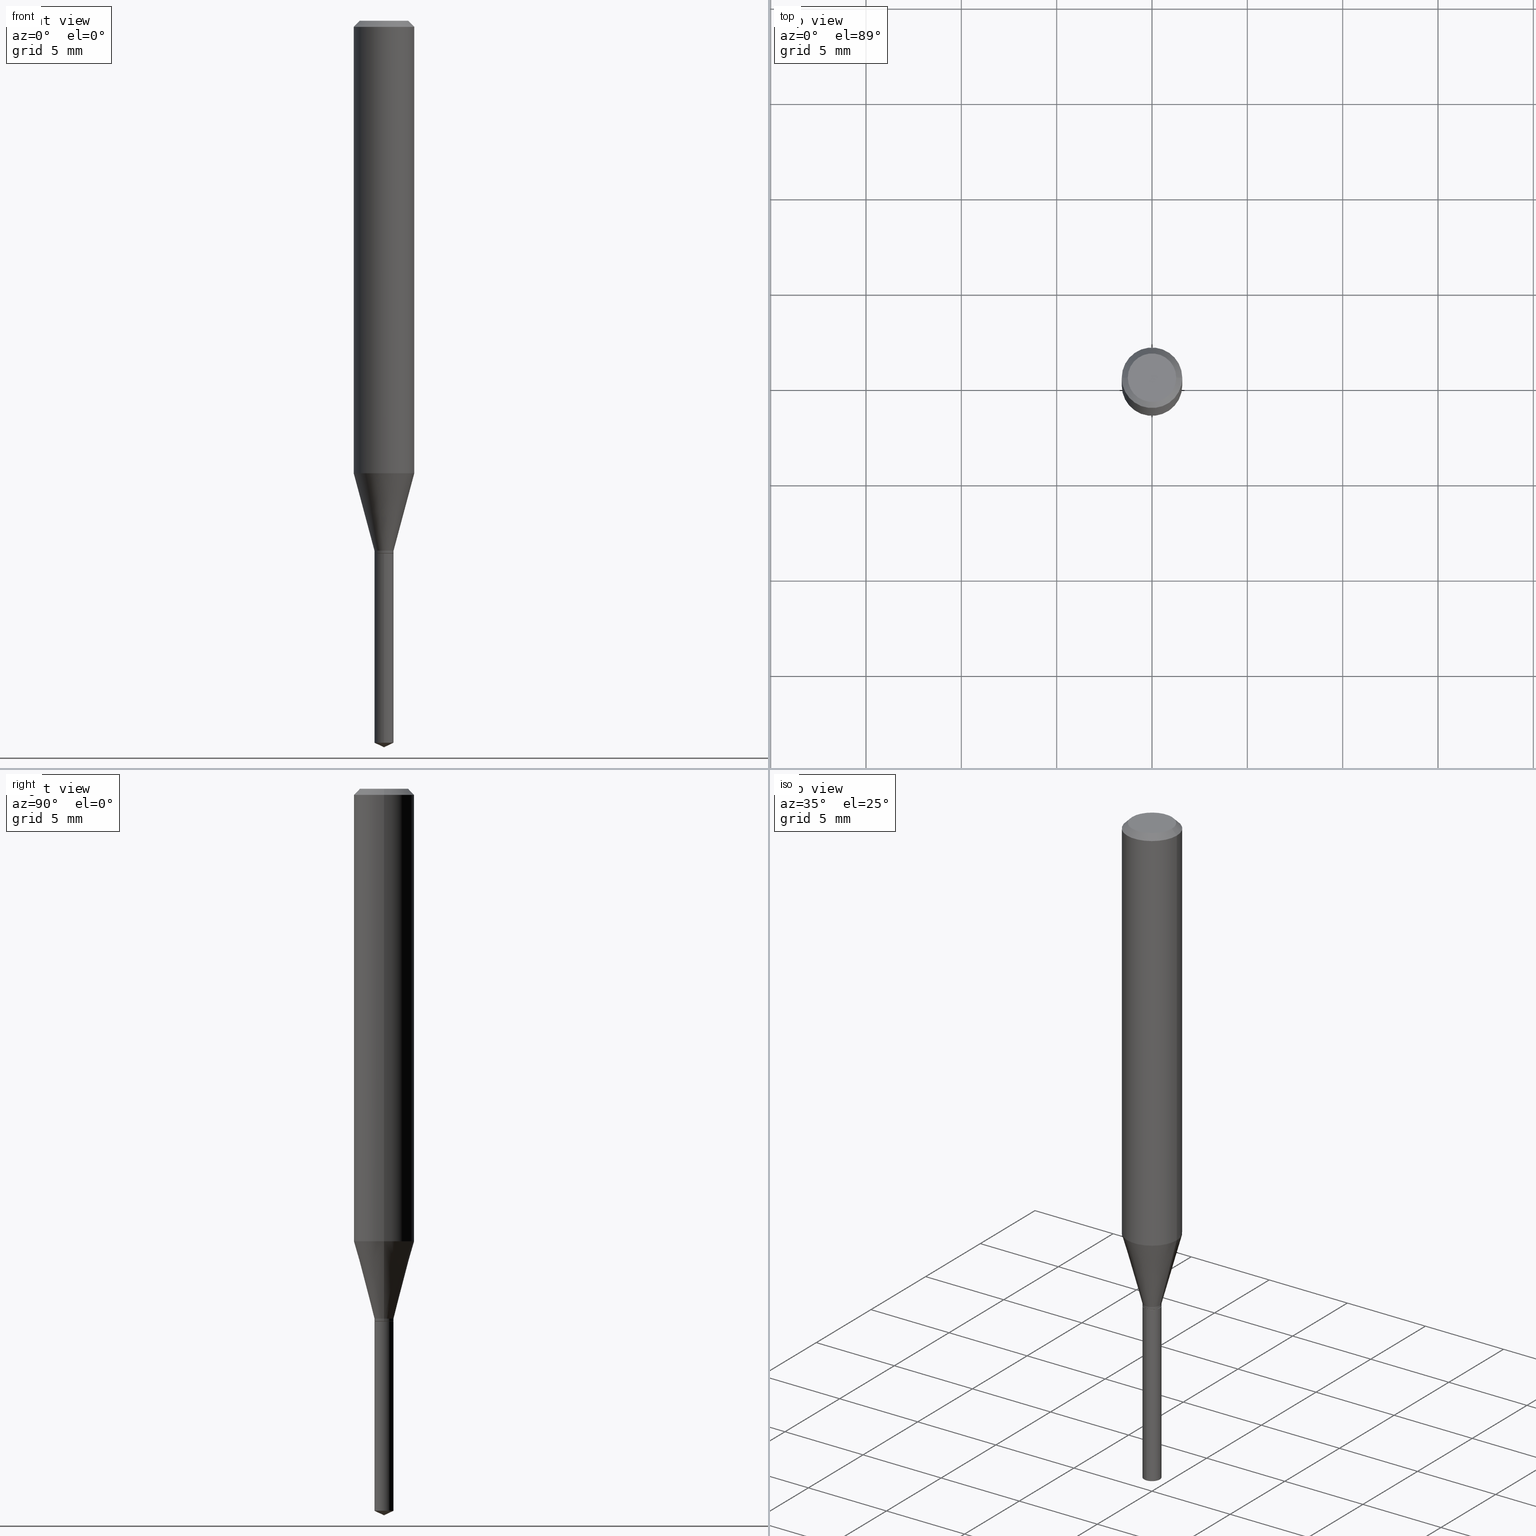
[diagram: canonical four-view strip — front | top / right | iso, engineering-drawing reading convention]
A machine part, canonical four-view strip (front | top / right | iso — engineering-drawing reading convention). The complete STEP part file that produces these views, byte-faithful:
ISO-10303-21;
HEADER;
FILE_DESCRIPTION (( 'STEP AP203' ),
    '1' );
FILE_NAME ('07319.STEP',
    '2024-04-23T20:25:37',
    ( '' ),
    ( '' ),
    'SwSTEP 2.0',
    'SolidWorks 2023',
    '' );
FILE_SCHEMA (( 'CONFIG_CONTROL_DESIGN' ));
ENDSEC;

DATA;
#1 = DIRECTION ( 'NONE',  ( 1.000000000000000000, -6.982962677686265922E-15, 4.876176775795935232E-29 ) ) ;
#2 = CIRCLE ( 'NONE', #381, 0.01969999999999999876 ) ;
#3 = AXIS2_PLACEMENT_3D ( 'NONE', #334, #342, #488 ) ;
#4 = EDGE_CURVE ( 'NONE', #133, #46, #37, .T. ) ;
#5 = CARTESIAN_POINT ( 'NONE',  ( 2.690015686803650369E-29, -3.840629472727460101E-15, -1.100000000000000089 ) ) ;
#6 = CIRCLE ( 'NONE', #418, 0.01919999999999999832 ) ;
#7 = VECTOR ( 'NONE', #107, 39.37007874015748143 ) ;
#8 = CARTESIAN_POINT ( 'NONE',  ( 0.06250000000000011102, -3.698764390073353980E-15, -0.9343682254360521355 ) ) ;
#9 = CARTESIAN_POINT ( 'NONE',  ( 2.675587420847158338E-29, -3.820029732828286359E-15, -1.094100000000000295 ) ) ;
#10 = FACE_OUTER_BOUND ( 'NONE', #239, .T. ) ;
#11 = APPROVAL ( #185, 'UNSPECIFIED' ) ;
#12 = ORIENTED_EDGE ( 'NONE', *, *, #383, .F. ) ;
#13 = COORDINATED_UNIVERSAL_TIME_OFFSET ( 5, 0, .BEHIND. ) ;
#14 = CARTESIAN_POINT ( 'NONE',  ( 0.01919999999999999832, -3.974702356139037098E-15, -1.100000000000000089 ) ) ;
#15 = CLOSED_SHELL ( 'NONE', ( #309, #18, #365, #379, #451, #295, #262, #138, #160, #489, #461, #323 ) ) ;
#16 = VERTEX_POINT ( 'NONE', #32 ) ;
#17 = AXIS2_PLACEMENT_3D ( 'NONE', #441, #94, #242 ) ;
#18 = ADVANCED_FACE ( 'NONE', ( #108 ), #195, .T. ) ;
#19 = APPROVAL_DATE_TIME ( #464, #146 ) ;
#20 = DIRECTION ( 'NONE',  ( -6.982962677686265133E-15, -1.000000000000000000, 6.933624349401683764E-15 ) ) ;
#21 = ORIENTED_EDGE ( 'NONE', *, *, #120, .T. ) ;
#22 = CARTESIAN_POINT ( 'NONE',  ( 3.668252923656895710E-29, -5.237152723863177100E-15, -1.500000000000000222 ) ) ;
#23 = APPLICATION_CONTEXT ( 'configuration controlled 3d designs of mechanical parts and assemblies' ) ;
#24 = VERTEX_POINT ( 'NONE', #67 ) ;
#25 = ORIENTED_EDGE ( 'NONE', *, *, #59, .T. ) ;
#26 = ORIENTED_EDGE ( 'NONE', *, *, #35, .F. ) ;
#27 = MECHANICAL_CONTEXT ( 'NONE', #23, 'mechanical' ) ;
#28 = EDGE_LOOP ( 'NONE', ( #100, #329, #480, #272 ) ) ;
#29 = EDGE_CURVE ( 'NONE', #192, #433, #180, .T. ) ;
#30 = APPLICATION_PROTOCOL_DEFINITION ( 'international standard', 'config_control_design', 1994, #68 ) ;
#31 =( CONVERSION_BASED_UNIT ( 'INCH', #103 ) LENGTH_UNIT ( ) NAMED_UNIT ( #129 ) );
#32 = CARTESIAN_POINT ( 'NONE',  ( -0.01919999999999999832, -3.701556040287409701E-15, -1.100000000000000089 ) ) ;
#33 = DATE_TIME_ROLE ( 'classification_date' ) ;
#34 = AXIS2_PLACEMENT_3D ( 'NONE', #416, #450, #1 ) ;
#35 = EDGE_CURVE ( 'NONE', #439, #46, #250, .T. ) ;
#36 = SHAPE_DEFINITION_REPRESENTATION ( #466, #483 ) ;
#37 = LINE ( 'NONE', #297, #469 ) ;
#38 = DIRECTION ( 'NONE',  ( -1.000000000000000000, 6.982962677686266711E-15, 0.000000000000000000 ) ) ;
#39 = ADVANCED_FACE ( 'NONE', ( #246 ), #385, .T. ) ;
#40 = PERSON_AND_ORGANIZATION ( #434, #316 ) ;
#41 = DIRECTION ( 'NONE',  ( 6.439704144417028775E-15, 0.9063077870366519351, 0.4226182617406950559 ) ) ;
#42 = CIRCLE ( 'NONE', #427, 0.06250000000000011102 ) ;
#43 = DIRECTION ( 'NONE',  ( 1.000000000000000000, -6.982962677686265922E-15, 4.875957971899673662E-29 ) ) ;
#44 = AXIS2_PLACEMENT_3D ( 'NONE', #378, #462, #71 ) ;
#45 = CARTESIAN_POINT ( 'NONE',  ( 1.399769189447762373E-16, 0.01969999999999615461, -1.100000000000000089 ) ) ;
#46 = VERTEX_POINT ( 'NONE', #102 ) ;
#47 = DIRECTION ( 'NONE',  ( 1.000000000000000000, -6.982962677686265922E-15, 0.000000000000000000 ) ) ;
#48 = ORIENTED_EDGE ( 'NONE', *, *, #339, .T. ) ;
#49 = CARTESIAN_POINT ( 'NONE',  ( 3.056836007731440539E-31, -4.364351673553960451E-17, -0.01250000000000008049 ) ) ;
#50 = VECTOR ( 'NONE', #172, 39.37007874015748143 ) ;
#51 = ORIENTED_EDGE ( 'NONE', *, *, #109, .T. ) ;
#52 = CC_DESIGN_SECURITY_CLASSIFICATION ( #233, ( #438 ) ) ;
#53 = EDGE_CURVE ( 'NONE', #122, #86, #399, .T. ) ;
#54 = ORIENTED_EDGE ( 'NONE', *, *, #390, .T. ) ;
#55 = DIRECTION ( 'NONE',  ( 1.000000000000000000, -6.982962677686278543E-15, 0.000000000000000000 ) ) ;
#56 = ORIENTED_EDGE ( 'NONE', *, *, #339, .F. ) ;
#57 = ORIENTED_EDGE ( 'NONE', *, *, #127, .T. ) ;
#58 = VERTEX_POINT ( 'NONE', #219 ) ;
#59 = EDGE_CURVE ( 'NONE', #86, #122, #2, .T. ) ;
#60 = ORIENTED_EDGE ( 'NONE', *, *, #217, .T. ) ;
#61 = CIRCLE ( 'NONE', #215, 0.01969999999999999876 ) ;
#62 = UNCERTAINTY_MEASURE_WITH_UNIT (LENGTH_MEASURE( 1.000000000000000082E-05 ), #31, 'distance_accuracy_value', 'NONE');
#63 = DIRECTION ( 'NONE',  ( -2.445399690415121530E-29, 3.491580316559632610E-15, 1.000000000000000000 ) ) ;
#64 = PERSON_AND_ORGANIZATION_ROLE ( 'design_owner' ) ;
#65 = COORDINATED_UNIVERSAL_TIME_OFFSET ( 5, 0, .BEHIND. ) ;
#66 = CC_DESIGN_PERSON_AND_ORGANIZATION_ASSIGNMENT ( #40, #425, ( #231 ) ) ;
#67 = CARTESIAN_POINT ( 'NONE',  ( 0.01969999999999999876, -3.976448096808457812E-15, -1.099499999999999922 ) ) ;
#68 = APPLICATION_CONTEXT ( 'configuration controlled 3d designs of mechanical parts and assemblies' ) ;
#69 = CALENDAR_DATE ( 2024, 23, 4 ) ;
#70 = AXIS2_PLACEMENT_3D ( 'NONE', #465, #426, #83 ) ;
#71 = DIRECTION ( 'NONE',  ( 1.000000000000000000, -6.982962677686266711E-15, 0.000000000000000000 ) ) ;
#72 = CIRCLE ( 'NONE', #3, 0.01969999999999999876 ) ;
#73 = DATE_AND_TIME ( #69, #78 ) ;
#74 = DIRECTION ( 'NONE',  ( -2.445468806185136597E-29, 3.491481338843145583E-15, 1.000000000000000000 ) ) ;
#75 = CARTESIAN_POINT ( 'NONE',  ( 3.645711483492757860E-29, -5.205187031730015573E-15, -1.490813739134346783 ) ) ;
#76 = EDGE_CURVE ( 'NONE', #16, #204, #6, .T. ) ;
#77 = CIRCLE ( 'NONE', #81, 0.04999999999999999584 ) ;
#78 = LOCAL_TIME ( 16, 25, 37.00000000000000000, #406 ) ;
#79 = LINE ( 'NONE', #408, #162 ) ;
#80 = CARTESIAN_POINT ( 'NONE',  ( 3.893286209682126177E-47, -5.558580879666067980E-33, -1.592040838891559689E-18 ) ) ;
#81 = AXIS2_PLACEMENT_3D ( 'NONE', #80, #220, #43 ) ;
#82 = CALENDAR_DATE ( 2024, 23, 4 ) ;
#83 = DIRECTION ( 'NONE',  ( 1.000000000000000000, -6.982962677686278543E-15, 0.000000000000000000 ) ) ;
#84 = APPROVAL ( #104, 'UNSPECIFIED' ) ;
#85 = LOCAL_TIME ( 16, 25, 37.00000000000000000, #13 ) ;
#86 = VERTEX_POINT ( 'NONE', #144 ) ;
#87 = ORIENTED_EDGE ( 'NONE', *, *, #252, .F. ) ;
#88 = EDGE_CURVE ( 'NONE', #282, #122, #178, .T. ) ;
#89 = ORIENTED_EDGE ( 'NONE', *, *, #396, .T. ) ;
#90 = FACE_OUTER_BOUND ( 'NONE', #128, .T. ) ;
#91 = EDGE_LOOP ( 'NONE', ( #478, #241, #130, #317 ) ) ;
#92 = ORIENTED_EDGE ( 'NONE', *, *, #152, .F. ) ;
#93 = FACE_OUTER_BOUND ( 'NONE', #331, .T. ) ;
#94 = DIRECTION ( 'NONE',  ( 2.438088387897960049E-29, -3.491481338843145188E-15, -1.000000000000000000 ) ) ;
#95 = CARTESIAN_POINT ( 'NONE',  ( -0.01969999999999999876, 1.399769189447397278E-16, -9.690302127802162501E-31 ) ) ;
#96 = CC_DESIGN_DATE_AND_TIME_ASSIGNMENT ( #352, #312, ( #231 ) ) ;
#97 = DIRECTION ( 'NONE',  ( 0.7071067811865453523, -7.319954787623248157E-15, -0.7071067811865496822 ) ) ;
#98 = AXIS2_PLACEMENT_3D ( 'NONE', #351, #435, #226 ) ;
#99 = AXIS2_PLACEMENT_3D ( 'NONE', #293, #253, #249 ) ;
#100 = ORIENTED_EDGE ( 'NONE', *, *, #217, .F. ) ;
#101 = LINE ( 'NONE', #404, #306 ) ;
#102 = CARTESIAN_POINT ( 'NONE',  ( 0.06250000000000000000, -4.800786840909312308E-16, -0.01250000000000008049 ) ) ;
#103 = LENGTH_MEASURE_WITH_UNIT ( LENGTH_MEASURE( 0.02539999999999999897 ), #444 );
#104 = APPROVAL_STATUS ( 'not_yet_approved' ) ;
#105 = DIRECTION ( 'NONE',  ( -6.982962677686265133E-15, -1.000000000000000000, 6.933624349401683764E-15 ) ) ;
#106 = DIRECTION ( 'NONE',  ( 1.000000000000000000, -6.982962677686278543E-15, 0.000000000000000000 ) ) ;
#107 = DIRECTION ( 'NONE',  ( -2.445399690415121810E-29, 3.491580316559632610E-15, 1.000000000000000000 ) ) ;
#108 = FACE_OUTER_BOUND ( 'NONE', #474, .T. ) ;
#109 = EDGE_CURVE ( 'NONE', #16, #333, #79, .T. ) ;
#110 = DIRECTION ( 'NONE',  ( 0.7071067811865218156, -2.468850131081987665E-15, 0.7071067811865732189 ) ) ;
#111 = DIRECTION ( 'NONE',  ( -2.445468806185136597E-29, 3.491481338843145583E-15, 1.000000000000000000 ) ) ;
#112 = DIRECTION ( 'NONE',  ( -6.328713451373374112E-15, -0.9063077870366490485, 0.4226182617407013287 ) ) ;
#113 = FACE_OUTER_BOUND ( 'NONE', #199, .T. ) ;
#114 = FACE_OUTER_BOUND ( 'NONE', #91, .T. ) ;
#115 = CC_DESIGN_PERSON_AND_ORGANIZATION_ASSIGNMENT ( #455, #449, ( #438 ) ) ;
#116 = LINE ( 'NONE', #190, #358 ) ;
#117 = DESIGN_CONTEXT ( 'detailed design', #68, 'design' ) ;
#118 = LOCAL_TIME ( 16, 25, 37.00000000000000000, #65 ) ;
#119 = EDGE_LOOP ( 'NONE', ( #21, #51, #440, #430 ) ) ;
#120 = EDGE_CURVE ( 'NONE', #204, #16, #153, .T. ) ;
#121 = EDGE_LOOP ( 'NONE', ( #216, #184, #320, #166 ) ) ;
#122 = VERTEX_POINT ( 'NONE', #275 ) ;
#123 = CARTESIAN_POINT ( 'NONE',  ( 0.000000000000000000, 0.000000000000000000, 0.000000000000000000 ) ) ;
#124 = ORIENTED_EDGE ( 'NONE', *, *, #4, .F. ) ;
#125 = AXIS2_PLACEMENT_3D ( 'NONE', #345, #382, #410 ) ;
#126 = LOCAL_TIME ( 16, 25, 37.00000000000000000, #189 ) ;
#127 = EDGE_CURVE ( 'NONE', #58, #234, #221, .T. ) ;
#128 = EDGE_LOOP ( 'NONE', ( #26, #87, #354, #164 ) ) ;
#129 = DIMENSIONAL_EXPONENTS ( 1.000000000000000000, 0.000000000000000000, 0.000000000000000000, 0.000000000000000000, 0.000000000000000000, 0.000000000000000000, 0.000000000000000000 ) ;
#130 = ORIENTED_EDGE ( 'NONE', *, *, #437, .T. ) ;
#131 = PERSON_AND_ORGANIZATION ( #434, #316 ) ;
#132 = PLANE ( 'NONE',  #17 ) ;
#133 = VERTEX_POINT ( 'NONE', #8 ) ;
#134 = MANIFOLD_SOLID_BREP ( 'Body-Move/Copy2[1]', #254 ) ;
#135 = DIRECTION ( 'NONE',  ( 1.000000000000000000, -6.982962677686265922E-15, 4.875957971899673662E-29 ) ) ;
#136 = CONICAL_SURFACE ( 'NONE', #70, 0.01969999999999999876, 0.2617993877991499629 ) ;
#137 = AXIS2_PLACEMENT_3D ( 'NONE', #288, #240, #403 ) ;
#138 = ADVANCED_FACE ( 'NONE', ( #273 ), #389, .T. ) ;
#139 = DIRECTION ( 'NONE',  ( 1.000000000000000000, -6.982962677686265922E-15, 0.000000000000000000 ) ) ;
#140 = EDGE_CURVE ( 'NONE', #46, #433, #486, .T. ) ;
#141 = AXIS2_PLACEMENT_3D ( 'NONE', #194, #314, #422 ) ;
#142 = CARTESIAN_POINT ( 'NONE',  ( 2.690015686803650369E-29, -3.840629472727460101E-15, -1.100000000000000089 ) ) ;
#143 = CARTESIAN_POINT ( 'NONE',  ( -0.06250000000000000000, 3.927916506198521080E-16, -0.01250000000000008049 ) ) ;
#144 = CARTESIAN_POINT ( 'NONE',  ( 1.399769189447761140E-16, 0.01969999999999479459, -1.490813739134346783 ) ) ;
#145 = CARTESIAN_POINT ( 'NONE',  ( 2.284968348794427209E-29, -3.262329222717961522E-15, -0.9343682254360521355 ) ) ;
#146 = APPROVAL ( #318, 'UNSPECIFIED' ) ;
#147 = CIRCLE ( 'NONE', #44, 0.06250000000000000000 ) ;
#148 = CONICAL_SURFACE ( 'NONE', #255, 0.01919999999999999832, 0.7853981633974119747 ) ;
#149 = CARTESIAN_POINT ( 'NONE',  ( -1.375643647503925164E-16, -0.01970000000000383944, -1.099999999999999867 ) ) ;
#150 = DIRECTION ( 'NONE',  ( -2.445468806185136597E-29, 3.491481338843145583E-15, 1.000000000000000000 ) ) ;
#151 = PLANE ( 'NONE',  #141 ) ;
#152 = EDGE_CURVE ( 'NONE', #234, #58, #338, .T. ) ;
#153 = CIRCLE ( 'NONE', #173, 0.01919999999999999832 ) ;
#154 = ORIENTED_EDGE ( 'NONE', *, *, #304, .T. ) ;
#155 = DIRECTION ( 'NONE',  ( -1.000000000000000000, 6.982962677686266711E-15, 0.000000000000000000 ) ) ;
#156 = APPROVAL_PERSON_ORGANIZATION ( #260, #84, #251 ) ;
#157 = ORIENTED_EDGE ( 'NONE', *, *, #224, .T. ) ;
#158 = CARTESIAN_POINT ( 'NONE',  ( 2.690015686803650369E-29, -3.840629472727460101E-15, -1.100000000000000089 ) ) ;
#159 = VERTEX_POINT ( 'NONE', #45 ) ;
#160 = ADVANCED_FACE ( 'NONE', ( #90 ), #181, .T. ) ;
#161 = DIRECTION ( 'NONE',  ( 0.000000000000000000, 0.000000000000000000, 1.000000000000000000 ) ) ;
#162 = VECTOR ( 'NONE', #473, 39.37007874015748143 ) ;
#163 = AXIS2_PLACEMENT_3D ( 'NONE', #170, #165, #208 ) ;
#164 = ORIENTED_EDGE ( 'NONE', *, *, #330, .T. ) ;
#165 = DIRECTION ( 'NONE',  ( -2.445468806185136597E-29, 3.491481338843145583E-15, 1.000000000000000000 ) ) ;
#166 = ORIENTED_EDGE ( 'NONE', *, *, #330, .F. ) ;
#167 = CARTESIAN_POINT ( 'NONE',  ( 0.01969999999999999876, -3.957594097578706363E-15, -1.094100000000000295 ) ) ;
#168 = DIRECTION ( 'NONE',  ( -6.982962677686266711E-15, -1.000000000000000000, 3.520397390770457025E-15 ) ) ;
#169 = COORDINATED_UNIVERSAL_TIME_OFFSET ( 5, 0, .BEHIND. ) ;
#170 = CARTESIAN_POINT ( 'NONE',  ( 0.000000000000000000, 0.000000000000000000, 0.000000000000000000 ) ) ;
#171 = ORIENTED_EDGE ( 'NONE', *, *, #383, .T. ) ;
#172 = DIRECTION ( 'NONE',  ( -0.7071067811865453523, 2.468850131082234184E-15, -0.7071067811865496822 ) ) ;
#173 = AXIS2_PLACEMENT_3D ( 'NONE', #158, #476, #384 ) ;
#174 = FACE_OUTER_BOUND ( 'NONE', #442, .T. ) ;
#175 = LINE ( 'NONE', #454, #7 ) ;
#176 = DIRECTION ( 'NONE',  ( -6.982962677686265133E-15, -1.000000000000000000, 6.933624349401683764E-15 ) ) ;
#177 = DIRECTION ( 'NONE',  ( 0.2588190451025212391, 1.565188264969622362E-15, 0.9659258262890679791 ) ) ;
#178 = LINE ( 'NONE', #459, #392 ) ;
#179 = CALENDAR_DATE ( 2024, 23, 4 ) ;
#180 = LINE ( 'NONE', #143, #50 ) ;
#181 = CONICAL_SURFACE ( 'NONE', #452, 0.06250000000000000000, 0.7853981633974452814 ) ;
#182 = VECTOR ( 'NONE', #244, 39.37007874015748143 ) ;
#183 = DIRECTION ( 'NONE',  ( 1.000000000000000000, -6.982962677686277755E-15, 0.000000000000000000 ) ) ;
#184 = ORIENTED_EDGE ( 'NONE', *, *, #285, .T. ) ;
#185 = APPROVAL_STATUS ( 'not_yet_approved' ) ;
#186 = CC_DESIGN_PERSON_AND_ORGANIZATION_ASSIGNMENT ( #413, #485, ( #438 ) ) ;
#187 = VECTOR ( 'NONE', #197, 39.37007874015748143 ) ;
#188 = CIRCLE ( 'NONE', #198, 0.04999999999999999584 ) ;
#189 = COORDINATED_UNIVERSAL_TIME_OFFSET ( 5, 0, .BEHIND. ) ;
#190 = CARTESIAN_POINT ( 'NONE',  ( -0.01969999999999999876, -3.680052813883547051E-15, -1.094100000000000295 ) ) ;
#191 = EDGE_CURVE ( 'NONE', #122, #230, #355, .T. ) ;
#192 = VERTEX_POINT ( 'NONE', #319 ) ;
#193 = DIRECTION ( 'NONE',  ( 1.000000000000000000, -6.982962677686266711E-15, 0.000000000000000000 ) ) ;
#194 = CARTESIAN_POINT ( 'NONE',  ( 2.690015686803650369E-29, -3.840629472727460101E-15, -1.100000000000000089 ) ) ;
#195 = CONICAL_SURFACE ( 'NONE', #327, 0.06250000000000000000, 0.7853981633974452814 ) ;
#196 = APPROVAL_ROLE ( '' ) ;
#197 = DIRECTION ( 'NONE',  ( -2.445399690415121810E-29, 3.491580316559632610E-15, 1.000000000000000000 ) ) ;
#198 = AXIS2_PLACEMENT_3D ( 'NONE', #259, #286, #135 ) ;
#199 = EDGE_LOOP ( 'NONE', ( #324, #157, #429, #92 ) ) ;
#200 = DIRECTION ( 'NONE',  ( -2.445468806185136597E-29, 3.491481338843145583E-15, 1.000000000000000000 ) ) ;
#201 = ORIENTED_EDGE ( 'NONE', *, *, #252, .T. ) ;
#202 = CARTESIAN_POINT ( 'NONE',  ( -1.375643647503925164E-16, -0.01970000000000383944, -1.099999999999999867 ) ) ;
#203 = ORIENTED_EDGE ( 'NONE', *, *, #269, .T. ) ;
#204 = VERTEX_POINT ( 'NONE', #14 ) ;
#205 = EDGE_LOOP ( 'NONE', ( #12, #25, #281, #366 ) ) ;
#206 = ADVANCED_FACE ( 'NONE', ( #394 ), #361, .T. ) ;
#207 = DATE_AND_TIME ( #179, #118 ) ;
#208 = DIRECTION ( 'NONE',  ( 1.000000000000000000, -6.982962677686265922E-15, 4.876176775795935232E-29 ) ) ;
#209 = AXIS2_PLACEMENT_3D ( 'NONE', #248, #228, #302 ) ;
#210 = PERSON_AND_ORGANIZATION ( #434, #316 ) ;
#211 = CARTESIAN_POINT ( 'NONE',  ( -0.01969999999999999876, -3.689479813498422381E-15, -1.099499999999999922 ) ) ;
#212 = SECURITY_CLASSIFICATION_LEVEL ( 'unclassified' ) ;
#213 = DIRECTION ( 'NONE',  ( 2.445468806185136597E-29, -3.491481338843145583E-15, -1.000000000000000000 ) ) ;
#214 = DIRECTION ( 'NONE',  ( -2.445399690415121530E-29, 3.491580316559632610E-15, 1.000000000000000000 ) ) ;
#215 = AXIS2_PLACEMENT_3D ( 'NONE', #279, #150, #55 ) ;
#216 = ORIENTED_EDGE ( 'NONE', *, *, #243, .F. ) ;
#217 = EDGE_CURVE ( 'NONE', #234, #277, #116, .T. ) ;
#218 = CALENDAR_DATE ( 2024, 23, 4 ) ;
#219 = CARTESIAN_POINT ( 'NONE',  ( 0.01969999999999999876, -3.957594097578706363E-15, -1.094100000000000295 ) ) ;
#220 = DIRECTION ( 'NONE',  ( -2.445468806185136597E-29, 3.491481338843145583E-15, 1.000000000000000000 ) ) ;
#221 = CIRCLE ( 'NONE', #98, 0.01969999999999999876 ) ;
#222 =( GEOMETRIC_REPRESENTATION_CONTEXT ( 3 ) GLOBAL_UNCERTAINTY_ASSIGNED_CONTEXT ( ( #62 ) ) GLOBAL_UNIT_ASSIGNED_CONTEXT ( ( #31, #247, #405 ) ) REPRESENTATION_CONTEXT ( 'NONE', 'WORKASPACE' ) );
#223 = DIRECTION ( 'NONE',  ( 2.445468806185136597E-29, -3.491481338843145583E-15, -1.000000000000000000 ) ) ;
#224 = EDGE_CURVE ( 'NONE', #333, #24, #61, .T. ) ;
#225 = ORIENTED_EDGE ( 'NONE', *, *, #88, .T. ) ;
#226 = DIRECTION ( 'NONE',  ( 1.000000000000000000, -6.982962677686278543E-15, 0.000000000000000000 ) ) ;
#227 = EDGE_LOOP ( 'NONE', ( #472, #225, #276 ) ) ;
#228 = DIRECTION ( 'NONE',  ( -2.445399690415121530E-29, 3.491580316559632610E-15, 1.000000000000000000 ) ) ;
#229 = DIRECTION ( 'NONE',  ( 1.000000000000000000, -6.982962677686266711E-15, 4.876176775795935232E-29 ) ) ;
#230 = VERTEX_POINT ( 'NONE', #202 ) ;
#231 = PRODUCT_DEFINITION ( 'UNKNOWN', '', #438, #117 ) ;
#232 = AXIS2_PLACEMENT_3D ( 'NONE', #270, #463, #20 ) ;
#233 = SECURITY_CLASSIFICATION ( '', '', #212 ) ;
#234 = VERTEX_POINT ( 'NONE', #363 ) ;
#235 = DIRECTION ( 'NONE',  ( -0.2588190451025212391, 5.211531920934549464E-15, 0.9659258262890679791 ) ) ;
#236 = ORIENTED_EDGE ( 'NONE', *, *, #140, .F. ) ;
#237 = CC_DESIGN_DATE_AND_TIME_ASSIGNMENT ( #207, #33, ( #233 ) ) ;
#238 = ORIENTED_EDGE ( 'NONE', *, *, #359, .T. ) ;
#239 = EDGE_LOOP ( 'NONE', ( #54, #203 ) ) ;
#240 = DIRECTION ( 'NONE',  ( -2.445399690415121530E-29, 3.491580316559632610E-15, 1.000000000000000000 ) ) ;
#241 = ORIENTED_EDGE ( 'NONE', *, *, #76, .T. ) ;
#242 = DIRECTION ( 'NONE',  ( -1.000000000000000000, 6.982962677686265922E-15, -4.876176775795935793E-29 ) ) ;
#243 = EDGE_CURVE ( 'NONE', #277, #433, #468, .T. ) ;
#244 = DIRECTION ( 'NONE',  ( -2.445468806185136877E-29, 3.491481338843145188E-15, 1.000000000000000000 ) ) ;
#245 = AXIS2_PLACEMENT_3D ( 'NONE', #346, #484, #448 ) ;
#246 = FACE_OUTER_BOUND ( 'NONE', #227, .T. ) ;
#247 =( NAMED_UNIT ( * ) PLANE_ANGLE_UNIT ( ) SI_UNIT ( $, .RADIAN. ) );
#248 = CARTESIAN_POINT ( 'NONE',  ( 3.645711483492757860E-29, -5.205187031730015573E-15, -1.490813739134346783 ) ) ;
#249 = DIRECTION ( 'NONE',  ( 1.000000000000000000, -6.982962677686265922E-15, 4.876176775795935793E-29 ) ) ;
#250 = LINE ( 'NONE', #303, #315 ) ;
#251 = APPROVAL_ROLE ( '' ) ;
#252 = EDGE_CURVE ( 'NONE', #192, #439, #77, .T. ) ;
#253 = DIRECTION ( 'NONE',  ( -2.438088387897960049E-29, 3.491481338843145188E-15, 1.000000000000000000 ) ) ;
#254 = CLOSED_SHELL ( 'NONE', ( #206, #467, #39, #445, #348 ) ) ;
#255 = AXIS2_PLACEMENT_3D ( 'NONE', #5, #307, #414 ) ;
#256 = CYLINDRICAL_SURFACE ( 'NONE', #34, 0.01969999999999999876 ) ;
#257 = ORIENTED_EDGE ( 'NONE', *, *, #390, .F. ) ;
#258 = PRODUCT_RELATED_PRODUCT_CATEGORY ( 'detail', '', ( #266 ) ) ;
#259 = CARTESIAN_POINT ( 'NONE',  ( 3.893286209682126177E-47, -5.558580879666067980E-33, -1.592040838891559689E-18 ) ) ;
#260 = PERSON_AND_ORGANIZATION ( #434, #316 ) ;
#261 = CARTESIAN_POINT ( 'NONE',  ( 0.04999999999999999584, -4.077247707424184212E-16, -1.592040838888913461E-18 ) ) ;
#262 = ADVANCED_FACE ( 'NONE', ( #310 ), #136, .T. ) ;
#263 = AXIS2_PLACEMENT_3D ( 'NONE', #353, #490, #176 ) ;
#264 = CARTESIAN_POINT ( 'NONE',  ( 2.688792952400557567E-29, -3.838883732058038598E-15, -1.099499999999999922 ) ) ;
#265 = CC_DESIGN_APPROVAL ( #146, ( #231 ) ) ;
#266 = PRODUCT ( '07319', '07319', '', ( #27 ) ) ;
#267 = CARTESIAN_POINT ( 'NONE',  ( -0.06250000000000005551, 4.440892098500630106E-16, -3.074334431409318916E-30 ) ) ;
#268 = CYLINDRICAL_SURFACE ( 'NONE', #386, 0.06250000000000005551 ) ;
#269 = EDGE_CURVE ( 'NONE', #159, #230, #347, .T. ) ;
#270 = CARTESIAN_POINT ( 'NONE',  ( 2.690015686803650369E-29, -3.840629472727460101E-15, -1.100000000000000089 ) ) ;
#271 = AXIS2_PLACEMENT_3D ( 'NONE', #402, #63, #168 ) ;
#272 = ORIENTED_EDGE ( 'NONE', *, *, #285, .F. ) ;
#273 = FACE_OUTER_BOUND ( 'NONE', #121, .T. ) ;
#274 = ORIENTED_EDGE ( 'NONE', *, *, #191, .F. ) ;
#275 = CARTESIAN_POINT ( 'NONE',  ( -1.375643647503829514E-16, -0.01970000000000519946, -1.490813739134346783 ) ) ;
#276 = ORIENTED_EDGE ( 'NONE', *, *, #59, .F. ) ;
#277 = VERTEX_POINT ( 'NONE', #458 ) ;
#278 = ORIENTED_EDGE ( 'NONE', *, *, #76, .F. ) ;
#279 = CARTESIAN_POINT ( 'NONE',  ( 2.688792952400557567E-29, -3.838883732058038598E-15, -1.099499999999999922 ) ) ;
#280 = AXIS2_PLACEMENT_3D ( 'NONE', #9, #308, #391 ) ;
#281 = ORIENTED_EDGE ( 'NONE', *, *, #191, .T. ) ;
#282 = VERTEX_POINT ( 'NONE', #456 ) ;
#283 = EDGE_LOOP ( 'NONE', ( #57, #60, #56, #356 ) ) ;
#284 = ORIENTED_EDGE ( 'NONE', *, *, #35, .T. ) ;
#285 = EDGE_CURVE ( 'NONE', #277, #133, #42, .T. ) ;
#286 = DIRECTION ( 'NONE',  ( -2.445468806185136597E-29, 3.491481338843145583E-15, 1.000000000000000000 ) ) ;
#287 = ORIENTED_EDGE ( 'NONE', *, *, #243, .T. ) ;
#288 = CARTESIAN_POINT ( 'NONE',  ( -9.260740279983036507E-28, 1.322265303911854087E-13, 37.87007874015748143 ) ) ;
#289 = CC_DESIGN_APPROVAL ( #11, ( #438 ) ) ;
#290 = DIRECTION ( 'NONE',  ( -2.445468806185136877E-29, 3.491481338843145188E-15, 1.000000000000000000 ) ) ;
#291 = CARTESIAN_POINT ( 'NONE',  ( 0.000000000000000000, 0.000000000000000000, 0.000000000000000000 ) ) ;
#292 = ORIENTED_EDGE ( 'NONE', *, *, #127, .F. ) ;
#293 = CARTESIAN_POINT ( 'NONE',  ( 2.690015686803650369E-29, -3.840629472727460101E-15, -1.100000000000000089 ) ) ;
#294 = LINE ( 'NONE', #167, #419 ) ;
#295 = ADVANCED_FACE ( 'NONE', ( #113 ), #256, .T. ) ;
#296 = PERSON_AND_ORGANIZATION_ROLE ( 'classification_officer' ) ;
#297 = CARTESIAN_POINT ( 'NONE',  ( 0.06250000000000005551, -4.364351673553920638E-16, 3.047610484872462323E-30 ) ) ;
#298 = VECTOR ( 'NONE', #423, 39.37007874015748143 ) ;
#299 = VECTOR ( 'NONE', #481, 39.37007874015748143 ) ;
#300 = CALENDAR_DATE ( 2024, 23, 4 ) ;
#301 = DIRECTION ( 'NONE',  ( -2.445399690415121530E-29, 3.491580316559632610E-15, 1.000000000000000000 ) ) ;
#302 = DIRECTION ( 'NONE',  ( -6.982962677686265133E-15, -1.000000000000000000, 0.000000000000000000 ) ) ;
#303 = CARTESIAN_POINT ( 'NONE',  ( 0.06250000000000000000, -4.724246415962602840E-16, -0.01250000000000008049 ) ) ;
#304 = EDGE_CURVE ( 'NONE', #24, #333, #305, .T. ) ;
#305 = CIRCLE ( 'NONE', #349, 0.01969999999999999876 ) ;
#306 = VECTOR ( 'NONE', #110, 39.37007874015748143 ) ;
#307 = DIRECTION ( 'NONE',  ( -2.445468806185136597E-29, 3.491481338843145583E-15, 1.000000000000000000 ) ) ;
#308 = DIRECTION ( 'NONE',  ( -2.445468806185136597E-29, 3.491481338843145583E-15, 1.000000000000000000 ) ) ;
#309 = ADVANCED_FACE ( 'NONE', ( #344 ), #436, .T. ) ;
#310 = FACE_OUTER_BOUND ( 'NONE', #28, .T. ) ;
#311 = MANIFOLD_SOLID_BREP ( 'Body-Move/Copy2[2]', #15 ) ;
#312 = DATE_TIME_ROLE ( 'creation_date' ) ;
#313 = EDGE_LOOP ( 'NONE', ( #201, #89 ) ) ;
#314 = DIRECTION ( 'NONE',  ( 2.445399690415121250E-29, -3.491580316559632610E-15, -1.000000000000000000 ) ) ;
#315 = VECTOR ( 'NONE', #97, 39.37007874015748143 ) ;
#316 = ORGANIZATION ( 'UNSPECIFIED', 'UNSPECIFIED', '' ) ;
#317 = ORIENTED_EDGE ( 'NONE', *, *, #224, .F. ) ;
#318 = APPROVAL_STATUS ( 'not_yet_approved' ) ;
#319 = CARTESIAN_POINT ( 'NONE',  ( -0.04999999999999999584, 3.709698922520826725E-16, -1.592040838894077649E-18 ) ) ;
#320 = ORIENTED_EDGE ( 'NONE', *, *, #4, .T. ) ;
#321 = PERSON_AND_ORGANIZATION ( #434, #316 ) ;
#322 = DIRECTION ( 'NONE',  ( -2.445468806185136597E-29, 3.491481338843145583E-15, 1.000000000000000000 ) ) ;
#323 = ADVANCED_FACE ( 'NONE', ( #114 ), #148, .T. ) ;
#324 = ORIENTED_EDGE ( 'NONE', *, *, #411, .F. ) ;
#325 = EDGE_LOOP ( 'NONE', ( #395, #238, #364 ) ) ;
#326 = EDGE_LOOP ( 'NONE', ( #475, #171, #257, #274 ) ) ;
#327 = AXIS2_PLACEMENT_3D ( 'NONE', #447, #213, #38 ) ;
#328 = VECTOR ( 'NONE', #41, 39.37007874015748854 ) ;
#329 = ORIENTED_EDGE ( 'NONE', *, *, #152, .T. ) ;
#330 = EDGE_CURVE ( 'NONE', #433, #46, #147, .T. ) ;
#331 = EDGE_LOOP ( 'NONE', ( #154, #369, #292, #397 ) ) ;
#332 = CARTESIAN_POINT ( 'NONE',  ( 0.01969999999999999876, -1.375643647504194363E-16, 9.606068248317991466E-31 ) ) ;
#333 = VERTEX_POINT ( 'NONE', #211 ) ;
#334 = CARTESIAN_POINT ( 'NONE',  ( 2.690015686803650369E-29, -3.840629472727460101E-15, -1.100000000000000089 ) ) ;
#335 = APPROVAL_DATE_TIME ( #409, #11 ) ;
#336 = EDGE_LOOP ( 'NONE', ( #48, #287, #236, #124 ) ) ;
#337 = FACE_OUTER_BOUND ( 'NONE', #313, .T. ) ;
#338 = CIRCLE ( 'NONE', #280, 0.01969999999999999876 ) ;
#339 = EDGE_CURVE ( 'NONE', #133, #277, #470, .T. ) ;
#340 = CC_DESIGN_APPROVAL ( #84, ( #233 ) ) ;
#341 = CC_DESIGN_PERSON_AND_ORGANIZATION_ASSIGNMENT ( #210, #296, ( #233 ) ) ;
#342 = DIRECTION ( 'NONE',  ( -2.445399690415121530E-29, 3.491580316559632610E-15, 1.000000000000000000 ) ) ;
#343 = PERSON_AND_ORGANIZATION ( #434, #316 ) ;
#344 = FACE_OUTER_BOUND ( 'NONE', #119, .T. ) ;
#345 = CARTESIAN_POINT ( 'NONE',  ( 2.690015686803650369E-29, -3.840629472727460101E-15, -1.100000000000000089 ) ) ;
#346 = CARTESIAN_POINT ( 'NONE',  ( 2.675587420847158338E-29, -3.820029732828286359E-15, -1.094100000000000295 ) ) ;
#347 = CIRCLE ( 'NONE', #263, 0.01969999999999999876 ) ;
#348 = ADVANCED_FACE ( 'NONE', ( #10 ), #151, .F. ) ;
#349 = AXIS2_PLACEMENT_3D ( 'NONE', #264, #421, #106 ) ;
#350 = AXIS2_PLACEMENT_3D ( 'NONE', #291, #161, #479 ) ;
#351 = CARTESIAN_POINT ( 'NONE',  ( 2.675587420847158338E-29, -3.820029732828286359E-15, -1.094100000000000295 ) ) ;
#352 = DATE_AND_TIME ( #82, #126 ) ;
#353 = CARTESIAN_POINT ( 'NONE',  ( 2.690015686803650369E-29, -3.840629472727460101E-15, -1.100000000000000089 ) ) ;
#354 = ORIENTED_EDGE ( 'NONE', *, *, #29, .T. ) ;
#355 = LINE ( 'NONE', #149, #187 ) ;
#356 = ORIENTED_EDGE ( 'NONE', *, *, #372, .F. ) ;
#357 = FACE_OUTER_BOUND ( 'NONE', #336, .T. ) ;
#358 = VECTOR ( 'NONE', #235, 39.37007874015748854 ) ;
#359 = EDGE_CURVE ( 'NONE', #282, #86, #471, .T. ) ;
#360 = CONICAL_SURFACE ( 'NONE', #245, 0.01969999999999999876, 0.2617993877991499629 ) ;
#361 = CYLINDRICAL_SURFACE ( 'NONE', #232, 0.01969999999999999876 ) ;
#362 = ORIENTED_EDGE ( 'NONE', *, *, #140, .T. ) ;
#363 = CARTESIAN_POINT ( 'NONE',  ( -0.01969999999999999876, -3.689479813498422381E-15, -1.094100000000000295 ) ) ;
#364 = ORIENTED_EDGE ( 'NONE', *, *, #53, .F. ) ;
#365 = ADVANCED_FACE ( 'NONE', ( #357 ), #268, .T. ) ;
#366 = ORIENTED_EDGE ( 'NONE', *, *, #269, .F. ) ;
#367 = APPLICATION_PROTOCOL_DEFINITION ( 'international standard', 'config_control_design', 1994, #23 ) ;
#368 = APPROVAL_PERSON_ORGANIZATION ( #343, #11, #432 ) ;
#369 = ORIENTED_EDGE ( 'NONE', *, *, #411, .T. ) ;
#370 = FACE_OUTER_BOUND ( 'NONE', #325, .T. ) ;
#371 = CYLINDRICAL_SURFACE ( 'NONE', #163, 0.01969999999999999876 ) ;
#372 = EDGE_CURVE ( 'NONE', #58, #133, #294, .T. ) ;
#373 = DIRECTION ( 'NONE',  ( 1.000000000000000000, -6.982962677686266711E-15, 4.876176775795935232E-29 ) ) ;
#374 = APPROVAL_DATE_TIME ( #73, #84 ) ;
#375 = CARTESIAN_POINT ( 'NONE',  ( 2.284968348794427209E-29, -3.262329222717961522E-15, -0.9343682254360521355 ) ) ;
#376 = PLANE ( 'NONE',  #99 ) ;
#377 = FACE_OUTER_BOUND ( 'NONE', #283, .T. ) ;
#378 = CARTESIAN_POINT ( 'NONE',  ( 3.056836007731440539E-31, -4.364351673553960451E-17, -0.01250000000000008049 ) ) ;
#379 = ADVANCED_FACE ( 'NONE', ( #377 ), #360, .T. ) ;
#380 = DIRECTION ( 'NONE',  ( -2.445468806185136597E-29, 3.491481338843145583E-15, 1.000000000000000000 ) ) ;
#381 = AXIS2_PLACEMENT_3D ( 'NONE', #75, #214, #417 ) ;
#382 = DIRECTION ( 'NONE',  ( -2.445468806185136597E-29, 3.491481338843145583E-15, 1.000000000000000000 ) ) ;
#383 = EDGE_CURVE ( 'NONE', #86, #159, #175, .T. ) ;
#384 = DIRECTION ( 'NONE',  ( 1.000000000000000000, -6.982962677686277755E-15, 0.000000000000000000 ) ) ;
#385 = CONICAL_SURFACE ( 'NONE', #271, 84.42940631927426409, 1.134464013796315562 ) ;
#386 = AXIS2_PLACEMENT_3D ( 'NONE', #424, #200, #373 ) ;
#387 = CARTESIAN_POINT ( 'NONE',  ( 3.056836007731440539E-31, -4.364351673553960451E-17, -0.01250000000000008049 ) ) ;
#388 = ORIENTED_EDGE ( 'NONE', *, *, #396, .F. ) ;
#389 = CYLINDRICAL_SURFACE ( 'NONE', #443, 0.06250000000000005551 ) ;
#390 = EDGE_CURVE ( 'NONE', #230, #159, #72, .T. ) ;
#391 = DIRECTION ( 'NONE',  ( 1.000000000000000000, -6.982962677686278543E-15, 0.000000000000000000 ) ) ;
#392 = VECTOR ( 'NONE', #112, 39.37007874015748143 ) ;
#393 = ORIENTED_EDGE ( 'NONE', *, *, #29, .F. ) ;
#394 = FACE_OUTER_BOUND ( 'NONE', #326, .T. ) ;
#395 = ORIENTED_EDGE ( 'NONE', *, *, #88, .F. ) ;
#396 = EDGE_CURVE ( 'NONE', #439, #192, #188, .T. ) ;
#397 = ORIENTED_EDGE ( 'NONE', *, *, #482, .F. ) ;
#398 = LINE ( 'NONE', #332, #299 ) ;
#399 = CIRCLE ( 'NONE', #209, 0.01969999999999999876 ) ;
#400 = AXIS2_PLACEMENT_3D ( 'NONE', #142, #301, #105 ) ;
#401 = CARTESIAN_POINT ( 'NONE',  ( -0.06250000000000000000, -1.208897159876686939E-15, -0.01250000000000008049 ) ) ;
#402 = CARTESIAN_POINT ( 'NONE',  ( -9.260740279983036507E-28, 1.322265303911854087E-13, 37.87007874015748143 ) ) ;
#403 = DIRECTION ( 'NONE',  ( -6.982962677686266711E-15, -1.000000000000000000, 3.520397390770457025E-15 ) ) ;
#404 = CARTESIAN_POINT ( 'NONE',  ( 0.01919999999999999832, -3.974702356139037098E-15, -1.100000000000000089 ) ) ;
#405 =( NAMED_UNIT ( * ) SI_UNIT ( $, .STERADIAN. ) SOLID_ANGLE_UNIT ( ) );
#406 = COORDINATED_UNIVERSAL_TIME_OFFSET ( 5, 0, .BEHIND. ) ;
#407 = LOCAL_TIME ( 16, 25, 37.00000000000000000, #169 ) ;
#408 = CARTESIAN_POINT ( 'NONE',  ( -0.01919999999999999832, -3.704205267461520902E-15, -1.100000000000000089 ) ) ;
#409 = DATE_AND_TIME ( #300, #407 ) ;
#410 = DIRECTION ( 'NONE',  ( 1.000000000000000000, -6.982962677686277755E-15, 0.000000000000000000 ) ) ;
#411 = EDGE_CURVE ( 'NONE', #333, #234, #446, .T. ) ;
#412 = CARTESIAN_POINT ( 'NONE',  ( 2.690015686803650369E-29, -3.840629472727460101E-15, -1.100000000000000089 ) ) ;
#413 = PERSON_AND_ORGANIZATION ( #434, #316 ) ;
#414 = DIRECTION ( 'NONE',  ( 1.000000000000000000, -6.982962677686277755E-15, 0.000000000000000000 ) ) ;
#415 = FACE_OUTER_BOUND ( 'NONE', #205, .T. ) ;
#416 = CARTESIAN_POINT ( 'NONE',  ( 0.000000000000000000, 0.000000000000000000, 0.000000000000000000 ) ) ;
#417 = DIRECTION ( 'NONE',  ( -6.982962677686265133E-15, -1.000000000000000000, 0.000000000000000000 ) ) ;
#418 = AXIS2_PLACEMENT_3D ( 'NONE', #412, #380, #183 ) ;
#419 = VECTOR ( 'NONE', #177, 39.37007874015748854 ) ;
#420 = CC_DESIGN_PERSON_AND_ORGANIZATION_ASSIGNMENT ( #131, #64, ( #266 ) ) ;
#421 = DIRECTION ( 'NONE',  ( -2.445468806185136597E-29, 3.491481338843145583E-15, 1.000000000000000000 ) ) ;
#422 = DIRECTION ( 'NONE',  ( 6.982962677686265922E-15, 1.000000000000000000, -3.491580316559632610E-15 ) ) ;
#423 = DIRECTION ( 'NONE',  ( -2.445468806185136877E-29, 3.491481338843145188E-15, 1.000000000000000000 ) ) ;
#424 = CARTESIAN_POINT ( 'NONE',  ( 0.000000000000000000, 0.000000000000000000, 0.000000000000000000 ) ) ;
#425 = PERSON_AND_ORGANIZATION_ROLE ( 'creator' ) ;
#426 = DIRECTION ( 'NONE',  ( -2.445468806185136597E-29, 3.491481338843145583E-15, 1.000000000000000000 ) ) ;
#427 = AXIS2_PLACEMENT_3D ( 'NONE', #145, #111, #139 ) ;
#428 = APPROVAL_PERSON_ORGANIZATION ( #321, #146, #196 ) ;
#429 = ORIENTED_EDGE ( 'NONE', *, *, #482, .T. ) ;
#430 = ORIENTED_EDGE ( 'NONE', *, *, #437, .F. ) ;
#431 = DIRECTION ( 'NONE',  ( -2.445468806185136597E-29, 3.491481338843145583E-15, 1.000000000000000000 ) ) ;
#432 = APPROVAL_ROLE ( '' ) ;
#433 = VERTEX_POINT ( 'NONE', #401 ) ;
#434 = PERSON ( 'UNSPECIFIED', 'UNSPECIFIED', 'UNSPECIFIED', ('UNSPECIFIED'), ('UNSPECIFIED'), ('UNSPECIFIED') ) ;
#435 = DIRECTION ( 'NONE',  ( -2.445468806185136597E-29, 3.491481338843145583E-15, 1.000000000000000000 ) ) ;
#436 = CONICAL_SURFACE ( 'NONE', #125, 0.01919999999999999832, 0.7853981633974119747 ) ;
#437 = EDGE_CURVE ( 'NONE', #204, #24, #101, .T. ) ;
#438 = PRODUCT_DEFINITION_FORMATION_WITH_SPECIFIED_SOURCE ( 'ANY', '', #266, .NOT_KNOWN. ) ;
#439 = VERTEX_POINT ( 'NONE', #261 ) ;
#440 = ORIENTED_EDGE ( 'NONE', *, *, #304, .F. ) ;
#441 = CARTESIAN_POINT ( 'NONE',  ( 1.946643104841063088E-47, -2.779290439833033990E-33, -7.960204194457798443E-19 ) ) ;
#442 = EDGE_LOOP ( 'NONE', ( #477, #278 ) ) ;
#443 = AXIS2_PLACEMENT_3D ( 'NONE', #123, #322, #229 ) ;
#444 =( LENGTH_UNIT ( ) NAMED_UNIT ( * ) SI_UNIT ( $, .METRE. ) );
#445 = ADVANCED_FACE ( 'NONE', ( #415 ), #457, .T. ) ;
#446 = LINE ( 'NONE', #95, #182 ) ;
#447 = CARTESIAN_POINT ( 'NONE',  ( 3.056836007731440539E-31, -4.364351673553960451E-17, -0.01250000000000008049 ) ) ;
#448 = DIRECTION ( 'NONE',  ( 1.000000000000000000, -6.982962677686278543E-15, 0.000000000000000000 ) ) ;
#449 = PERSON_AND_ORGANIZATION_ROLE ( 'design_supplier' ) ;
#450 = DIRECTION ( 'NONE',  ( -2.445468806185136597E-29, 3.491481338843145583E-15, 1.000000000000000000 ) ) ;
#451 = ADVANCED_FACE ( 'NONE', ( #93 ), #371, .T. ) ;
#452 = AXIS2_PLACEMENT_3D ( 'NONE', #49, #223, #155 ) ;
#453 = AXIS2_PLACEMENT_3D ( 'NONE', #375, #74, #47 ) ;
#454 = CARTESIAN_POINT ( 'NONE',  ( 1.399769189447665984E-16, 0.01969999999999615461, -1.100000000000000089 ) ) ;
#455 = PERSON_AND_ORGANIZATION ( #434, #316 ) ;
#456 = CARTESIAN_POINT ( 'NONE',  ( 3.668099535622682715E-29, -5.237370474839449507E-15, -1.500000000000000222 ) ) ;
#457 = CYLINDRICAL_SURFACE ( 'NONE', #400, 0.01969999999999999876 ) ;
#458 = CARTESIAN_POINT ( 'NONE',  ( -0.06250000000000011102, -2.818240012867898117E-15, -0.9343682254360521355 ) ) ;
#459 = CARTESIAN_POINT ( 'NONE',  ( 3.668099535622682155E-29, -5.237370474839448718E-15, -1.500000000000000222 ) ) ;
#460 = AXIS2_PLACEMENT_3D ( 'NONE', #387, #431, #193 ) ;
#461 = ADVANCED_FACE ( 'NONE', ( #174 ), #376, .F. ) ;
#462 = DIRECTION ( 'NONE',  ( -2.445468806185136597E-29, 3.491481338843145583E-15, 1.000000000000000000 ) ) ;
#463 = DIRECTION ( 'NONE',  ( -2.445399690415121530E-29, 3.491580316559632610E-15, 1.000000000000000000 ) ) ;
#464 = DATE_AND_TIME ( #218, #85 ) ;
#465 = CARTESIAN_POINT ( 'NONE',  ( 2.675587420847158338E-29, -3.820029732828286359E-15, -1.094100000000000295 ) ) ;
#466 = PRODUCT_DEFINITION_SHAPE ( 'NONE', 'NONE',  #231 ) ;
#467 = ADVANCED_FACE ( 'NONE', ( #370 ), #487, .T. ) ;
#468 = LINE ( 'NONE', #267, #298 ) ;
#469 = VECTOR ( 'NONE', #290, 39.37007874015748143 ) ;
#470 = CIRCLE ( 'NONE', #453, 0.06250000000000011102 ) ;
#471 = LINE ( 'NONE', #22, #328 ) ;
#472 = ORIENTED_EDGE ( 'NONE', *, *, #359, .F. ) ;
#473 = DIRECTION ( 'NONE',  ( -0.7071067811865218156, 7.493145998870261075E-15, 0.7071067811865732189 ) ) ;
#474 = EDGE_LOOP ( 'NONE', ( #388, #284, #362, #393 ) ) ;
#475 = ORIENTED_EDGE ( 'NONE', *, *, #53, .T. ) ;
#476 = DIRECTION ( 'NONE',  ( -2.445468806185136597E-29, 3.491481338843145583E-15, 1.000000000000000000 ) ) ;
#477 = ORIENTED_EDGE ( 'NONE', *, *, #120, .F. ) ;
#478 = ORIENTED_EDGE ( 'NONE', *, *, #109, .F. ) ;
#479 = DIRECTION ( 'NONE',  ( 1.000000000000000000, 0.000000000000000000, 0.000000000000000000 ) ) ;
#480 = ORIENTED_EDGE ( 'NONE', *, *, #372, .T. ) ;
#481 = DIRECTION ( 'NONE',  ( -2.445468806185136877E-29, 3.491481338843145188E-15, 1.000000000000000000 ) ) ;
#482 = EDGE_CURVE ( 'NONE', #24, #58, #398, .T. ) ;
#483 = ADVANCED_BREP_SHAPE_REPRESENTATION ( '07319', ( #134, #311, #350 ), #222 ) ;
#484 = DIRECTION ( 'NONE',  ( -2.445468806185136597E-29, 3.491481338843145583E-15, 1.000000000000000000 ) ) ;
#485 = PERSON_AND_ORGANIZATION_ROLE ( 'creator' ) ;
#486 = CIRCLE ( 'NONE', #460, 0.06250000000000000000 ) ;
#487 = CONICAL_SURFACE ( 'NONE', #137, 84.42940631927426409, 1.134464013796315562 ) ;
#488 = DIRECTION ( 'NONE',  ( -6.982962677686265133E-15, -1.000000000000000000, 6.933624349401683764E-15 ) ) ;
#489 = ADVANCED_FACE ( 'NONE', ( #337 ), #132, .F. ) ;
#490 = DIRECTION ( 'NONE',  ( -2.445399690415121530E-29, 3.491580316559632610E-15, 1.000000000000000000 ) ) ;
ENDSEC;
END-ISO-10303-21;
